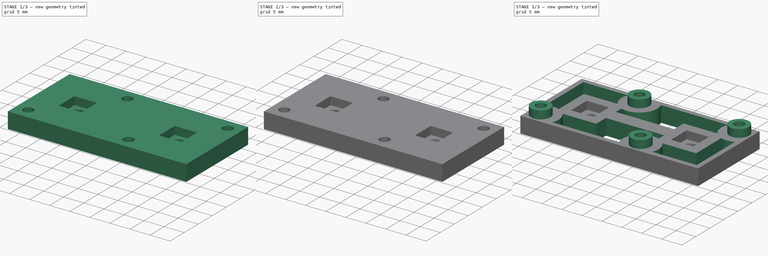
[diagram: build sequence overview — one tinted view per stage of 3, left to right]
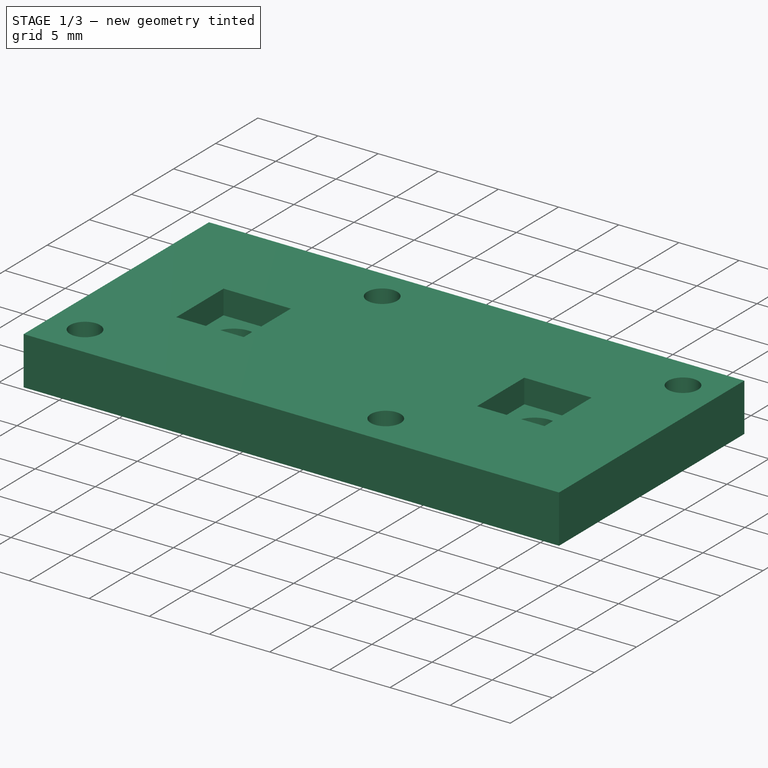
[diagram: stage 1 of 3 — iso view after this stage's code; geometry added in this stage tinted green]
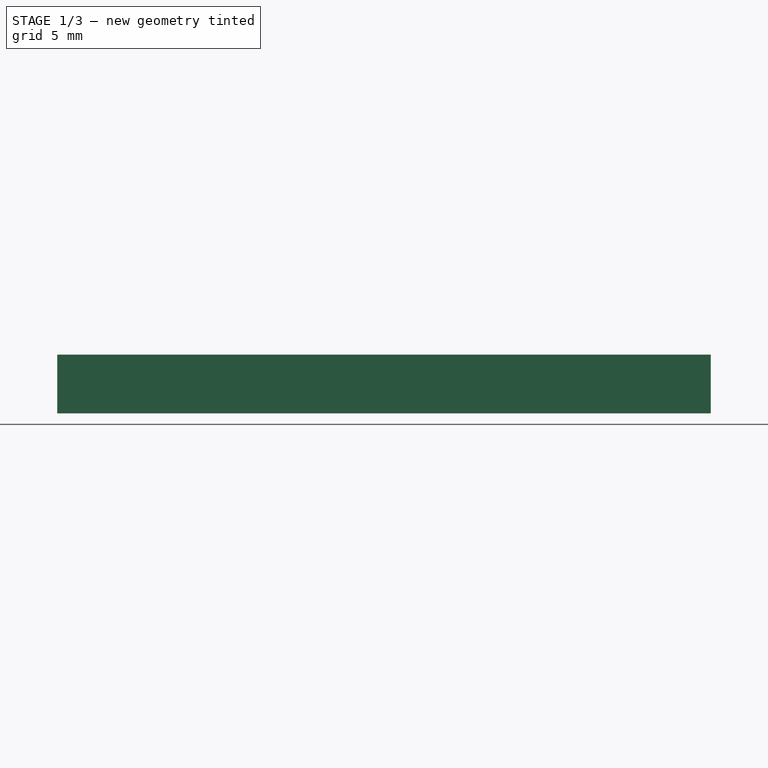
[diagram: stage 1 of 3 — front view after this stage's code; geometry added in this stage tinted green]
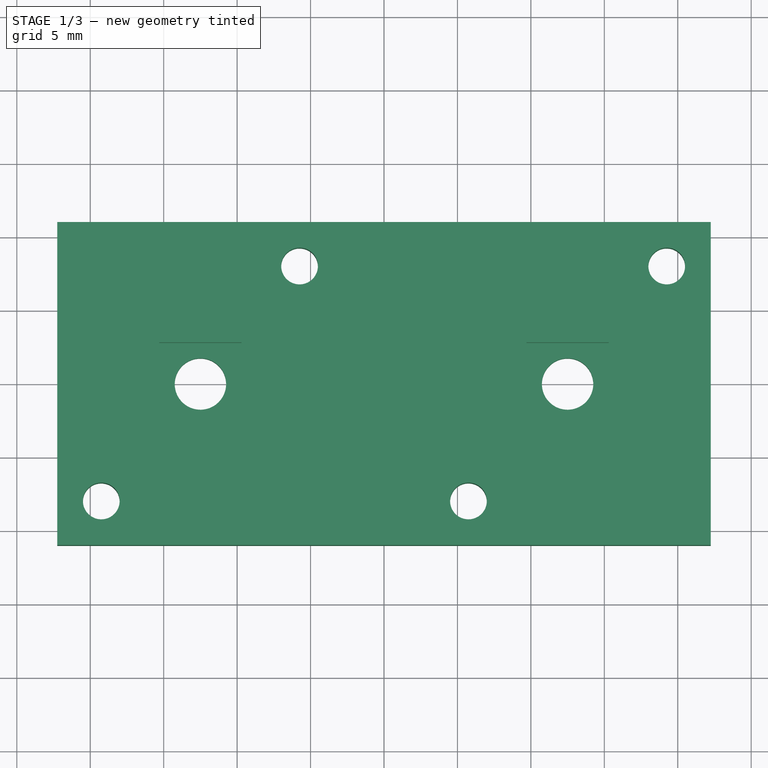
[diagram: stage 1 of 3 — top view after this stage's code; geometry added in this stage tinted green]
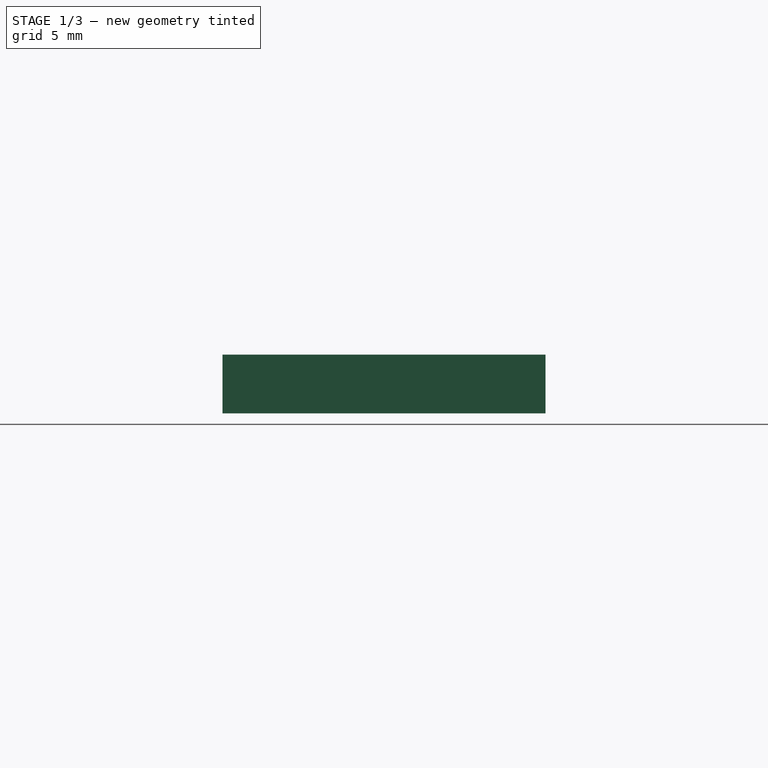
[diagram: stage 1 of 3 — right view after this stage's code; geometry added in this stage tinted green]
FCSTD DOCUMENT  (FreeCAD 0.19R24291 (Git))
Label: ri_step-down-holder
License: All rights reserved
LicenseURL: http://en.wikipedia.org/wiki/All_rights_reserved
objects: Sketcher::SketchObject×5, PartDesign::Pocket×3, PartDesign::Pad×2, PartDesign::Body×1, App::Part×1
note: 16 computed .brp shape members not serialized (recipe doc carries the construction recipe); baked Part::Feature solids carry a one-line shape summary decoded from their .brp

FEATURE [Sketcher::SketchObject] Sketch
  FullyConstrained = true
  MapMode = 5
  Support = -> [XY_Plane001]
  expr: Constraints[6] = .Constraints.Hor_Dim
  expr: Constraints[5] = .Constraints.Vert_Dim
  expr: Constraints[25] = .Constraints.Space_R
  sketch-geometry (10):
    g0: Circle CenterX=-12.5 CenterY=0 CenterZ=0 NormalX=0 NormalY=0 NormalZ=1 AngleXU=0 Radius=1.75
    g1: Circle CenterX=12.5 CenterY=0 CenterZ=0 NormalX=0 NormalY=0 NormalZ=1 AngleXU=0 Radius=1.75
    g2: Circle CenterX=-19.25 CenterY=-8 CenterZ=0 NormalX=0 NormalY=0 NormalZ=1 AngleXU=0 Radius=1.25
    g3: Circle CenterX=-5.75 CenterY=8 CenterZ=0 NormalX=0 NormalY=0 NormalZ=1 AngleXU=0 Radius=1.25
    g4: Circle CenterX=19.25 CenterY=8 CenterZ=0 NormalX=0 NormalY=0 NormalZ=1 AngleXU=0 Radius=1.25
    g5: Circle CenterX=5.75 CenterY=-8 CenterZ=0 NormalX=0 NormalY=0 NormalZ=1 AngleXU=0 Radius=1.25
    g6: LineSegment StartX=-22.25 StartY=11 StartZ=0 EndX=22.25 EndY=11 EndZ=0
    g7: LineSegment StartX=22.25 StartY=11 StartZ=0 EndX=22.25 EndY=-11 EndZ=0
    g8: LineSegment StartX=22.25 StartY=-11 StartZ=0 EndX=-22.25 EndY=-11 EndZ=0
    g9: LineSegment StartX=-22.25 StartY=-11 StartZ=0 EndX=-22.25 EndY=11 EndZ=0
  constraints (26):
    c: PointOnObject(g0,g-1)
    c: Diameter(g0) = 3.5
    c: Equal(g0,g1)
    c: Symmetric(g0,g1,g-1)
    c: DistanceX(g0,g1) = 25
    c: DistanceY(g5,g4) = 16
    c: DistanceX(g5,g4) = 13.5
    c: DistanceX(g2,g3) = 13.5  'Hor_Dim'
    c: Symmetric(g2,g3,g0)
    c: Symmetric(g4,g5,g1)
    c: DistanceY(g2,g3) = 16  'Vert_Dim'
    c: Diameter(g3) = 2.5
    c: Equal(g3,g2)
    c: Equal(g3,g5)
    c: Equal(g3,g4)
    c: Coincident(g6,g7)
    c: Coincident(g7,g8)
    c: Coincident(g8,g9)
    c: Coincident(g9,g6)
    c: Horizontal(g6)
    c: Horizontal(g8)
    c: Vertical(g7)
    c: Vertical(g9)
    c: Symmetric(g8,g6,g-1)
    c: DistanceX(g8,g2) = 3  'Space_R'
    c: DistanceY(g8,g2) = 3
FEATURE [PartDesign::Pad] Pad
  Direction = (1,1,1)
  Length = 4
  Length2 = 100
  Profile = -> Sketch
  Refine = true
  Type = 0
FEATURE [Sketcher::SketchObject] Sketch001
  ExternalGeometry = -> [Pad]
  FullyConstrained = true
  MapMode = 5
  Placement = pos=(0,0,4) rot=(0,0,1;0rad)
  Support = -> [Pad]
  sketch-geometry (8):
    g0: LineSegment StartX=-15.3 StartY=2.8 StartZ=0 EndX=-9.7 EndY=2.8 EndZ=0
    g1: LineSegment StartX=-9.7 StartY=2.8 StartZ=0 EndX=-9.7 EndY=-2.8 EndZ=0
    g2: LineSegment StartX=-9.7 StartY=-2.8 StartZ=0 EndX=-15.3 EndY=-2.8 EndZ=0
    g3: LineSegment StartX=-15.3 StartY=-2.8 StartZ=0 EndX=-15.3 EndY=2.8 EndZ=0
    g4: LineSegment StartX=9.7 StartY=2.8 StartZ=0 EndX=15.3 EndY=2.8 EndZ=0
    g5: LineSegment StartX=15.3 StartY=2.8 StartZ=0 EndX=15.3 EndY=-2.8 EndZ=0
    g6: LineSegment StartX=15.3 StartY=-2.8 StartZ=0 EndX=9.7 EndY=-2.8 EndZ=0
    g7: LineSegment StartX=9.7 StartY=-2.8 StartZ=0 EndX=9.7 EndY=2.8 EndZ=0
  constraints (22):
    c: Coincident(g0,g1)
    c: Coincident(g1,g2)
    c: Coincident(g2,g3)
    c: Coincident(g3,g0)
    c: Horizontal(g0)
    c: Horizontal(g2)
    c: Vertical(g1)
    c: Vertical(g3)
    c: Equal(g0,g3)
    c: Coincident(g4,g5)
    c: Coincident(g5,g6)
    c: Coincident(g6,g7)
    c: Coincident(g7,g4)
    c: Horizontal(g4)
    c: Horizontal(g6)
    c: Vertical(g5)
    c: Vertical(g7)
    c: Equal(g4,g7)
    c: DistanceY(g5,g5) = 5.6
    c: Equal(g3,g5)
    c: Symmetric(g2,g0,g-3)
    c: Symmetric(g6,g4,g-4)
FEATURE [PartDesign::Pocket] Pocket
  BaseFeature = -> Pad
  Length = 2
  Length2 = 100
  Profile = -> Sketch001
  Refine = true
  Type = 0
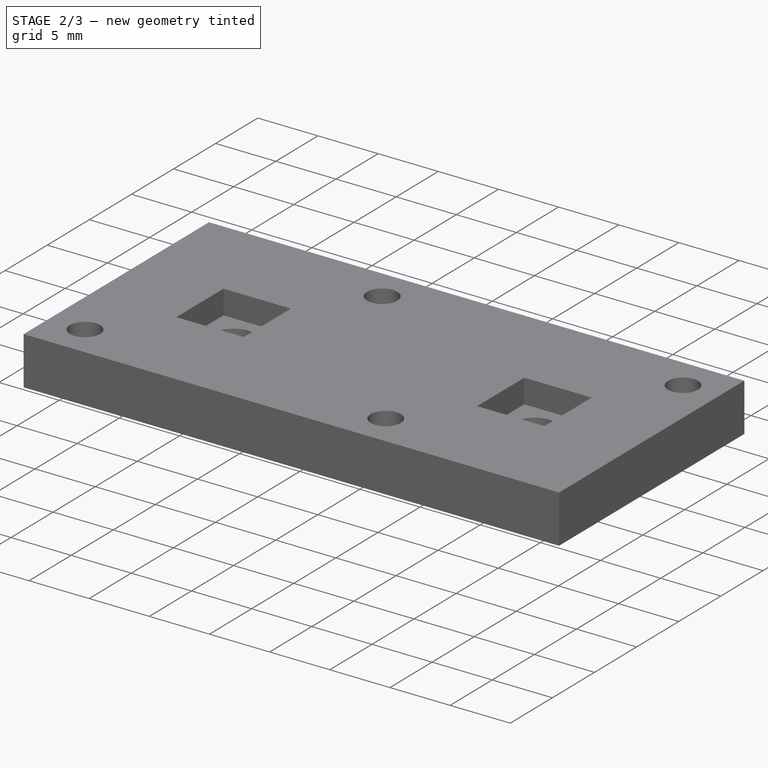
[diagram: stage 2 of 3 — iso view after this stage's code; geometry added in this stage tinted green]
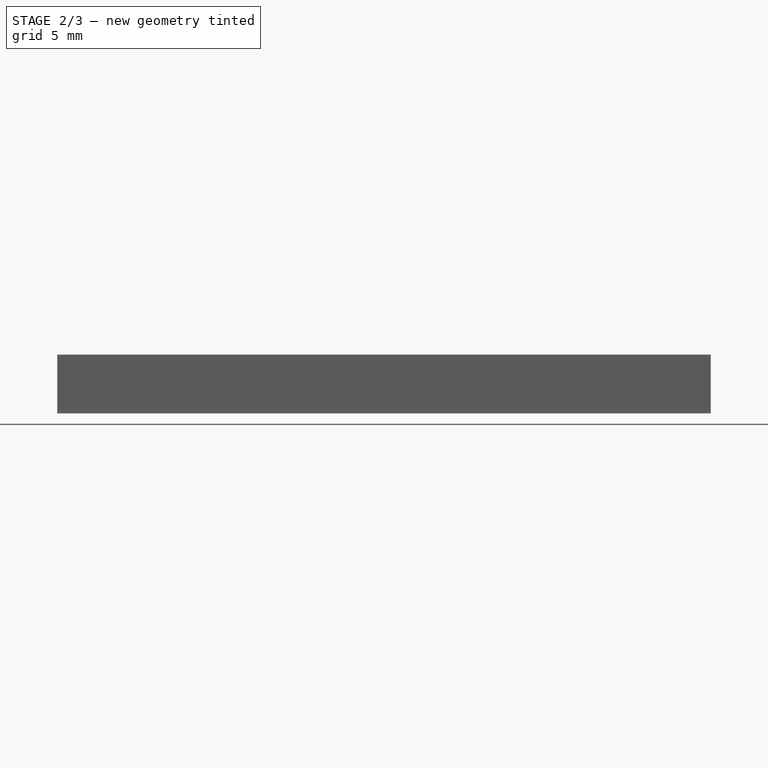
[diagram: stage 2 of 3 — front view after this stage's code; geometry added in this stage tinted green]
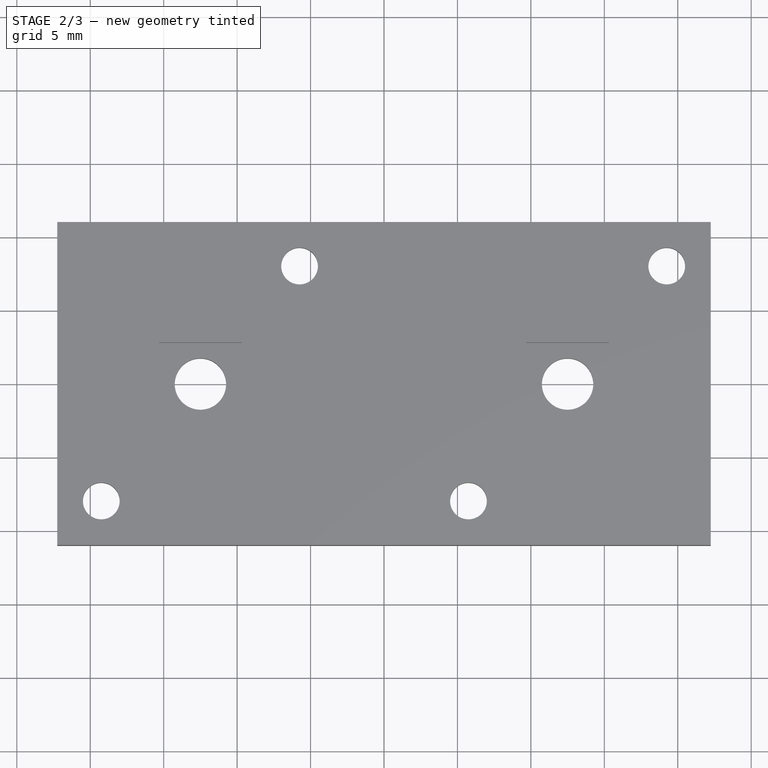
[diagram: stage 2 of 3 — top view after this stage's code; geometry added in this stage tinted green]
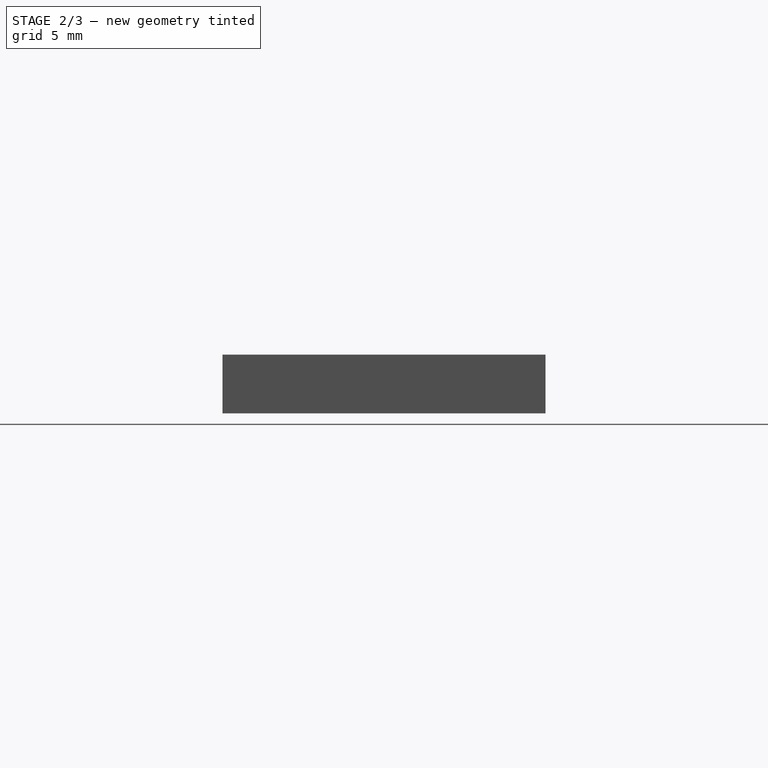
[diagram: stage 2 of 3 — right view after this stage's code; geometry added in this stage tinted green]
FEATURE [Sketcher::SketchObject] Sketch002
  ExternalGeometry = -> [Pocket]
  FullyConstrained = true
  MapMode = 5
  Placement = pos=(0,0,0) rot=(1,0,0;3.14159rad)
  sketch-geometry (28):
    g0: LineSegment StartX=-3.7 StartY=-6.81643 StartZ=0 EndX=-5.75 EndY=-5.63286 EndZ=0
    g1: LineSegment StartX=-5.75 StartY=-5.63286 StartZ=0 EndX=-7.8 EndY=-6.81643 EndZ=0
    g2: LineSegment StartX=-7.8 StartY=-6.81643 StartZ=0 EndX=-7.8 EndY=-9.18357 EndZ=0
    g3: LineSegment StartX=-7.8 StartY=-9.18357 StartZ=0 EndX=-5.75 EndY=-10.3671 EndZ=0
    g4: LineSegment StartX=-5.75 StartY=-10.3671 StartZ=0 EndX=-3.7 EndY=-9.18357 EndZ=0
    g5: LineSegment StartX=-3.7 StartY=-9.18357 StartZ=0 EndX=-3.7 EndY=-6.81643 EndZ=0
    g6: Circle CenterX=-5.75 CenterY=-8 CenterZ=0 NormalX=0 NormalY=0 NormalZ=1 AngleXU=0 Radius=2.36714
    g7: LineSegment StartX=7.8 StartY=9.18357 StartZ=0 EndX=5.75 EndY=10.3671 EndZ=0
    g8: LineSegment StartX=5.75 StartY=10.3671 StartZ=0 EndX=3.7 EndY=9.18357 EndZ=0
    g9: LineSegment StartX=3.7 StartY=9.18357 StartZ=0 EndX=3.7 EndY=6.81643 EndZ=0
    g10: LineSegment StartX=3.7 StartY=6.81643 StartZ=0 EndX=5.75 EndY=5.63286 EndZ=0
    g11: LineSegment StartX=5.75 StartY=5.63286 StartZ=0 EndX=7.8 EndY=6.81643 EndZ=0
    g12: LineSegment StartX=7.8 StartY=6.81643 StartZ=0 EndX=7.8 EndY=9.18357 EndZ=0
    g13: Circle CenterX=5.75 CenterY=8 CenterZ=0 NormalX=0 NormalY=0 NormalZ=1 AngleXU=0 Radius=2.36714
    g14: LineSegment StartX=21.3 StartY=-6.81643 StartZ=0 EndX=19.25 EndY=-5.63286 EndZ=0
    g15: LineSegment StartX=19.25 StartY=-5.63286 StartZ=0 EndX=17.2 EndY=-6.81643 EndZ=0
    g16: LineSegment StartX=17.2 StartY=-6.81643 StartZ=0 EndX=17.2 EndY=-9.18357 EndZ=0
    g17: LineSegment StartX=17.2 StartY=-9.18357 StartZ=0 EndX=19.25 EndY=-10.3671 EndZ=0
    g18: LineSegment StartX=19.25 StartY=-10.3671 StartZ=0 EndX=21.3 EndY=-9.18357 EndZ=0
    g19: LineSegment StartX=21.3 StartY=-9.18357 StartZ=0 EndX=21.3 EndY=-6.81643 EndZ=0
    g20: Circle CenterX=19.25 CenterY=-8 CenterZ=0 NormalX=0 NormalY=0 NormalZ=1 AngleXU=0 Radius=2.36714
    g21: LineSegment StartX=-17.2 StartY=9.18357 StartZ=0 EndX=-19.25 EndY=10.3671 EndZ=0
    g22: LineSegment StartX=-19.25 StartY=10.3671 StartZ=0 EndX=-21.3 EndY=9.18357 EndZ=0
    g23: LineSegment StartX=-21.3 StartY=9.18357 StartZ=0 EndX=-21.3 EndY=6.81643 EndZ=0
    g24: LineSegment StartX=-21.3 StartY=6.81643 StartZ=0 EndX=-19.25 EndY=5.63286 EndZ=0
    g25: LineSegment StartX=-19.25 StartY=5.63286 StartZ=0 EndX=-17.2 EndY=6.81643 EndZ=0
    g26: LineSegment StartX=-17.2 StartY=6.81643 StartZ=0 EndX=-17.2 EndY=9.18357 EndZ=0
    g27: Circle CenterX=-19.25 CenterY=8 CenterZ=0 NormalX=0 NormalY=0 NormalZ=1 AngleXU=0 Radius=2.36714
  constraints (64):
    c: Coincident(g0,g1)
    c: Coincident(g1,g2)
    c: Coincident(g2,g3)
    c: Coincident(g3,g4)
    c: Coincident(g4,g5)
    c: Coincident(g5,g0)
    c: Equal(g0, g1-g5) x5
    c: PointOnObject(g0,g6)
    c: PointOnObject(g1,g6)
    c: PointOnObject(g2,g6)
    c: PointOnObject(g3,g6)
    c: PointOnObject(g4,g6)
    c: PointOnObject(g5,g6)
    c: Coincident(g6,g-3)
    c: Coincident(g7,g8)
    c: Coincident(g8,g9)
    c: Coincident(g9,g10)
    c: Coincident(g10,g11)
    c: Coincident(g11,g12)
    c: Coincident(g12,g7)
    c: Equal(g7, g8-g12) x5
    c: PointOnObject(g7,g13)
    c: PointOnObject(g8,g13)
    c: PointOnObject(g9,g13)
    c: PointOnObject(g10,g13)
    c: PointOnObject(g11,g13)
    c: PointOnObject(g12,g13)
    c: Coincident(g13,g-4)
    c: Coincident(g14,g15)
    c: Coincident(g15,g16)
    c: Coincident(g16,g17)
    c: Coincident(g17,g18)
    c: Coincident(g18,g19)
    c: Coincident(g19,g14)
    c: Equal(g14, g15-g19) x5
    c: PointOnObject(g14,g20)
    c: PointOnObject(g15,g20)
    c: PointOnObject(g16,g20)
    c: PointOnObject(g17,g20)
    c: PointOnObject(g18,g20)
    c: PointOnObject(g19,g20)
    c: Coincident(g20,g-5)
    c: Coincident(g21,g22)
    c: Coincident(g22,g23)
    c: Coincident(g23,g24)
    c: Coincident(g24,g25)
    c: Coincident(g25,g26)
    c: Coincident(g26,g21)
    c: Equal(g21, g22-g26) x5
    c: PointOnObject(g21,g27)
    c: PointOnObject(g22,g27)
    c: PointOnObject(g23,g27)
    c: PointOnObject(g24,g27)
    c: PointOnObject(g25,g27)
    c: PointOnObject(g26,g27)
    c: Coincident(g27,g-6)
    c: Equal(g6,g13)
    c: Equal(g6,g20)
    c: Equal(g6,g27)
    c: Vertical(g0,g3)
    c: Vertical(g7,g10)
    c: Vertical(g14,g17)
    c: Vertical(g21,g24)
    c: DistanceX(g2,g4) = 4.1
FEATURE [PartDesign::Pocket] Pocket001
  BaseFeature = -> Pocket
  Length = 2
  Length2 = 100
  Profile = -> Sketch002
  Refine = true
  Type = 0
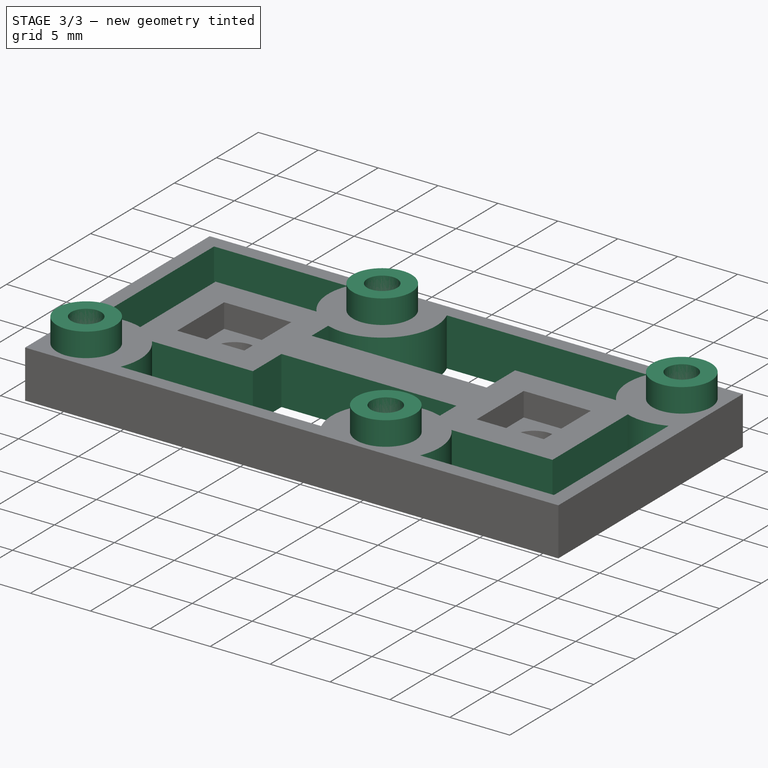
[diagram: stage 3 of 3 — iso view after this stage's code; geometry added in this stage tinted green]
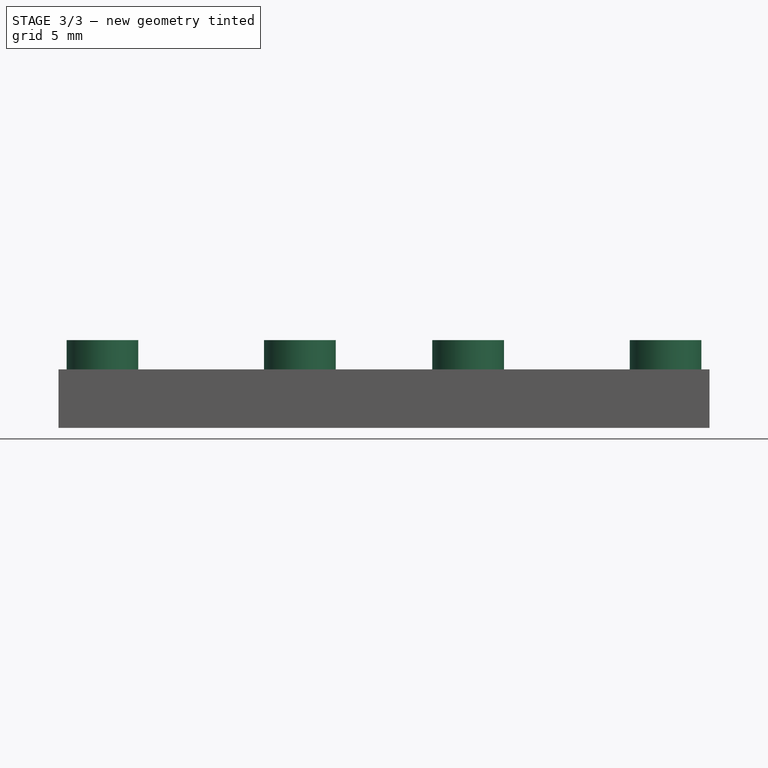
[diagram: stage 3 of 3 — front view after this stage's code; geometry added in this stage tinted green]
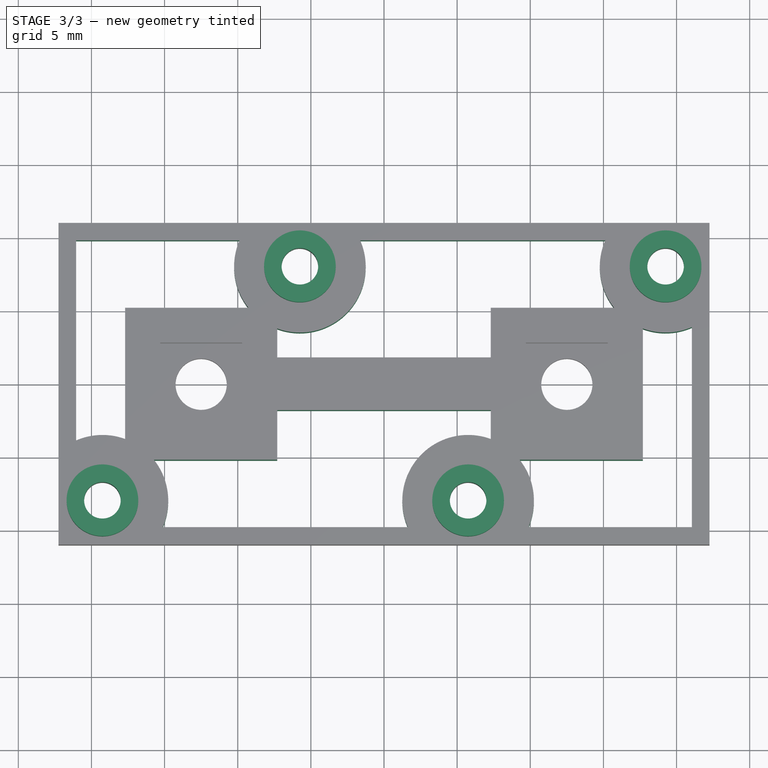
[diagram: stage 3 of 3 — top view after this stage's code; geometry added in this stage tinted green]
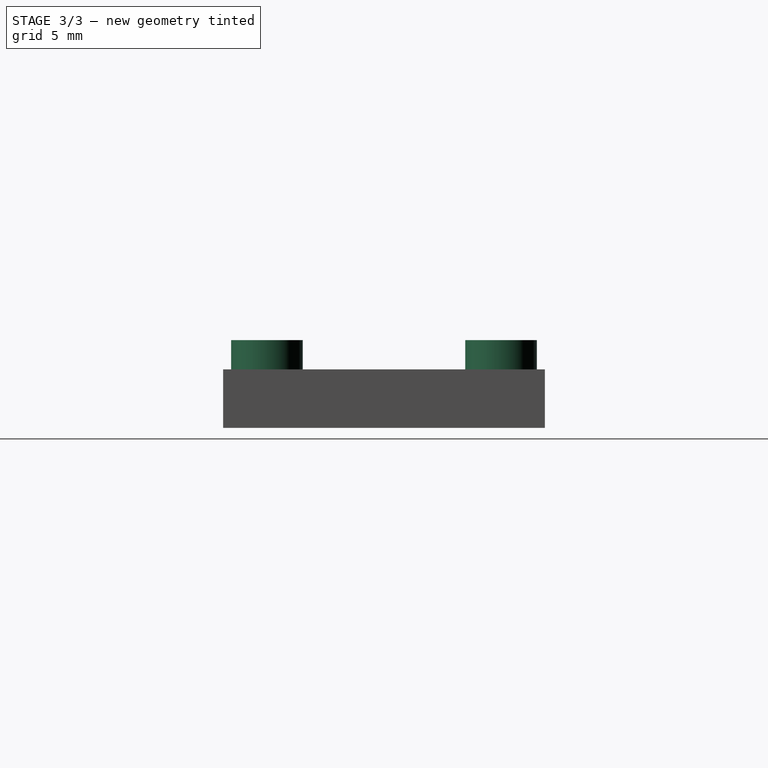
[diagram: stage 3 of 3 — right view after this stage's code; geometry added in this stage tinted green]
FEATURE [Sketcher::SketchObject] Sketch003
  ExternalGeometry = -> [Pocket001]
  FullyConstrained = true
  MapMode = 5
  Placement = pos=(0,0,4) rot=(0,0,1;0rad)
  Support = -> [Pocket001]
  sketch-geometry (10):
    g0: Circle CenterX=-5.75 CenterY=8 CenterZ=0 NormalX=0 NormalY=0 NormalZ=1 AngleXU=0 Radius=2.45
    g1: Circle CenterX=19.25 CenterY=8 CenterZ=0 NormalX=0 NormalY=0 NormalZ=1 AngleXU=0 Radius=2.45
    g2: Circle CenterX=5.75 CenterY=-8 CenterZ=0 NormalX=0 NormalY=0 NormalZ=1 AngleXU=0 Radius=2.45
    g3: Circle CenterX=-19.25 CenterY=-8 CenterZ=0 NormalX=0 NormalY=0 NormalZ=1 AngleXU=0 Radius=2.45
    g4: Circle CenterX=-5.75 CenterY=8 CenterZ=0 NormalX=0 NormalY=0 NormalZ=1 AngleXU=0 Radius=1.25
    g5: Circle CenterX=-19.25 CenterY=-8 CenterZ=0 NormalX=0 NormalY=0 NormalZ=1 AngleXU=0 Radius=1.25
    g6: Circle CenterX=5.75 CenterY=-8 CenterZ=0 NormalX=0 NormalY=0 NormalZ=1 AngleXU=0 Radius=1.25
    g7: Circle CenterX=19.25 CenterY=8 CenterZ=0 NormalX=0 NormalY=0 NormalZ=1 AngleXU=0 Radius=1.25
    g8: GeomPoint X=-4.5 Y=8 Z=0
    g9: GeomPoint X=-3.3 Y=8 Z=0
  constraints (20):
    c: Coincident(g0,g-3)
    c: Coincident(g1,g-6)
    c: Coincident(g2,g-5)
    c: Coincident(g3,g-4)
    c: Equal(g0,g3)
    c: Equal(g0,g2)
    c: Equal(g0,g1)
    c: Coincident(g4,g0)
    c: Equal(g-3,g4)
    c: Coincident(g5,g3)
    c: Equal(g5,g-4)
    c: Coincident(g6,g2)
    c: Equal(g-5,g6)
    c: Coincident(g7,g1)
    c: Equal(g7,g-6)
    c: PointOnObject(g8,g4)
    c: PointOnObject(g9,g0)
    c: Horizontal(g8,g9)
    c: Horizontal(g8,g0)
    c: DistanceX(g8,g9) = 1.2
FEATURE [PartDesign::Pad] Pad001
  BaseFeature = -> Pocket001
  Direction = (1,1,1)
  Length = 2
  Length2 = 100
  Profile = -> Sketch003
  Refine = true
  Type = 0
FEATURE [Sketcher::SketchObject] Sketch004
  ExternalGeometry = -> [Pad001]
  FullyConstrained = true
  MapMode = 5
  Placement = pos=(0,0,4) rot=(0,0,1;0rad)
  Support = -> [Pad001]
  expr: Constraints[74] = .Constraints.Wall * 3
  expr: Constraints[62] = .Constraints.Wall * 2
  expr: Constraints[60] = .Constraints.Wall * 2
  expr: Constraints[63] = .Constraints.Wall * 2
  expr: Constraints[58] = .Constraints.Wall * 2
  expr: Constraints[57] = .Constraints.Wall * 2
  expr: Constraints[56] = .Constraints.Wall * 2
  expr: Constraints[25] = .Constraints.Wall
  expr: Constraints[21] = .Constraints.Wall
  expr: Constraints[22] = .Constraints.Wall
  expr: Constraints[61] = .Constraints.Wall * 2
  expr: Constraints[23] = .Constraints.Wall
  expr: Constraints[59] = .Constraints.Wall * 2
  expr: Constraints[24] = .Constraints.Wall
  sketch-geometry (28):
    g0: LineSegment StartX=-21.05 StartY=9.8 StartZ=0 EndX=-21.05 EndY=-3.87568 EndZ=0
    g1: LineSegment StartX=-17.7 StartY=-3.77537 StartZ=0 EndX=-17.7 EndY=5.2 EndZ=0
    g2: LineSegment StartX=-17.7 StartY=5.2 StartZ=0 EndX=-9.27278 EndY=5.2 EndZ=0
    g3: LineSegment StartX=-9.87432 StartY=9.8 StartZ=0 EndX=-21.05 EndY=9.8 EndZ=0
    g4: LineSegment StartX=17.7 StartY=3.77537 StartZ=0 EndX=17.7 EndY=-5.2 EndZ=0
    g5: LineSegment StartX=17.7 StartY=-5.2 StartZ=0 EndX=9.27278 EndY=-5.2 EndZ=0
    g6: LineSegment StartX=9.87432 StartY=-9.8 StartZ=0 EndX=21.05 EndY=-9.8 EndZ=0
    g7: LineSegment StartX=21.05 StartY=-9.8 StartZ=0 EndX=21.05 EndY=3.87568 EndZ=0
    g8: LineSegment StartX=-7.3 StartY=3.77537 StartZ=0 EndX=-7.3 EndY=1.8 EndZ=0
    g9: LineSegment StartX=-7.3 StartY=-5.2 StartZ=0 EndX=-15.7272 EndY=-5.2 EndZ=0
    g10: LineSegment StartX=-15.1257 StartY=-9.8 StartZ=0 EndX=1.62568 EndY=-9.8 EndZ=0
    g11: LineSegment StartX=7.3 StartY=-3.77537 StartZ=0 EndX=7.3 EndY=-1.8 EndZ=0
    g12: LineSegment StartX=7.3 StartY=5.2 StartZ=0 EndX=15.7272 EndY=5.2 EndZ=0
    g13: LineSegment StartX=15.1257 StartY=9.8 StartZ=0 EndX=-1.62568 EndY=9.8 EndZ=0
    g14: ArcOfCircle CenterX=-5.75 CenterY=8 CenterZ=0 NormalX=0 NormalY=0 NormalZ=1 AngleXU=0 Radius=4.5 StartAngle=4.36074 EndAngle=6.6947
    g15: ArcOfCircle CenterX=-5.75 CenterY=8 CenterZ=0 NormalX=0 NormalY=0 NormalZ=1 AngleXU=0 Radius=4.5 StartAngle=2.73008 EndAngle=3.81317
    g16: ArcOfCircle CenterX=-19.25 CenterY=-8 CenterZ=0 NormalX=0 NormalY=0 NormalZ=1 AngleXU=0 Radius=4.5 StartAngle=1.21915 EndAngle=1.98231
    g17: ArcOfCircle CenterX=-19.25 CenterY=-8 CenterZ=0 NormalX=0 NormalY=0 NormalZ=1 AngleXU=0 Radius=4.5 StartAngle=5.87167 EndAngle=6.95476
    g18: ArcOfCircle CenterX=5.75 CenterY=-8 CenterZ=0 NormalX=0 NormalY=0 NormalZ=1 AngleXU=0 Radius=4.5 StartAngle=1.21915 EndAngle=3.55311
    g19: ArcOfCircle CenterX=5.75 CenterY=-8 CenterZ=0 NormalX=0 NormalY=0 NormalZ=1 AngleXU=0 Radius=4.5 StartAngle=5.87167 EndAngle=6.95476
    g20: ArcOfCircle CenterX=19.25 CenterY=8 CenterZ=0 NormalX=0 NormalY=0 NormalZ=1 AngleXU=0 Radius=4.5 StartAngle=2.73008 EndAngle=3.81317
    g21: ArcOfCircle CenterX=19.25 CenterY=8 CenterZ=0 NormalX=0 NormalY=0 NormalZ=1 AngleXU=0 Radius=4.5 StartAngle=4.36074 EndAngle=5.12391
    g22: LineSegment StartX=-7.3 StartY=1.8 StartZ=0 EndX=7.3 EndY=1.8 EndZ=0
    g23: LineSegment StartX=-7.3 StartY=-1.8 StartZ=0 EndX=7.3 EndY=-1.8 EndZ=0
    g24: LineSegment StartX=7.3 StartY=1.8 StartZ=0 EndX=7.3 EndY=5.2 EndZ=0
    g25: LineSegment StartX=-7.3 StartY=-1.8 StartZ=0 EndX=-7.3 EndY=-5.2 EndZ=0
    g26: GeomPoint X=-7.3 Y=0 Z=0
    g27: GeomPoint X=7.3 Y=0 Z=0
  constraints (79):
    c: Vertical(g0)
    c: Vertical(g1)
    c: Coincident(g1,g2)
    c: Horizontal(g2)
    c: Coincident(g3,g0)
    c: Horizontal(g3)
    c: Vertical(g4)
    c: Coincident(g4,g5)
    c: Horizontal(g5)
    c: Horizontal(g6)
    c: Coincident(g6,g7)
    c: Vertical(g7)
    c: Vertical(g8)
    c: Coincident(g25,g9)
    c: Horizontal(g9)
    c: Horizontal(g10)
    c: Vertical(g11)
    c: Coincident(g24,g12)
    c: Horizontal(g12)
    c: Horizontal(g13)
    c: DistanceY(g0,g-16) = 1.2  'Wall'
    c: DistanceY(g13,g-18) = 1.2
    c: DistanceY(g-18,g6) = 1.2
    c: DistanceY(g-17,g10) = 1.2
    c: DistanceX(g6,g-18) = 1.2
    c: DistanceX(g-16,g0) = 1.2
    c: Coincident(g14,g-11)
    c: Coincident(g15,g14)
    c: Coincident(g15,g2)
    c: Coincident(g16,g-12)
    c: Coincident(g16,g0)
    c: Coincident(g17,g16)
    c: Coincident(g17,g9)
    c: Coincident(g18,g-13)
    c: Coincident(g18,g10)
    c: Coincident(g19,g18)
    c: Coincident(g19,g5)
    c: Equal(g15,g14)
    c: Equal(g16,g17)
    c: Equal(g18,g19)
    c: Equal(g18,g14)
    c: Coincident(g20,g-14)
    c: Coincident(g20,g12)
    c: Coincident(g21,g20)
    c: Equal(g21,g20)
    c: Equal(g20,g17)
    c: Coincident(g3,g15)
    c: Coincident(g13,g14)
    c: Coincident(g8,g14)
    c: Coincident(g17,g10)
    c: Coincident(g1,g16)
    c: Coincident(g21,g4)
    c: Coincident(g7,g21)
    c: Coincident(g20,g13)
    c: Coincident(g19,g6)
    c: Coincident(g11,g18)
    c: DistanceY(g-6,g2) = 2.4
    c: DistanceY(g9,g-5) = 2.4
    c: DistanceY(g5,g-10) = 2.4
    c: DistanceY(g-9,g12) = 2.4
    c: DistanceX(g11,g-10) = 2.4
    c: DistanceX(g-6,g8) = 2.4
    c: DistanceX(g1,g-5) = 2.4
    c: DistanceX(g-9,g4) = 2.4
    c: Radius(g18) = 4.5
    c: Equal(g17,g18)
    c: Horizontal(g22)
    c: Horizontal(g23)
    c: Tangent(g11,g24)
    c: Coincident(g22,g24)
    c: Coincident(g23,g11)
    c: Tangent(g8,g25)
    c: Coincident(g22,g8)
    c: Coincident(g23,g25)
    c: DistanceY(g11,g22) = 3.6
    c: PointOnObject(g26,g-1)
    c: PointOnObject(g27,g-1)
    c: Vertical(g27,g11)
    c: Symmetric(g23,g8,g26)
FEATURE [PartDesign::Pocket] Pocket002
  BaseFeature = -> Pad001
  Length = 5
  Length2 = 100
  Profile = -> Sketch004
  Refine = true
  Type = 1
FEATURE [PartDesign::Body] Body
  Group = -> [Sketch,Pad,Sketch001,Sketch002,Pocket,Pocket001,Sketch003,Pad001,Sketch004,Pocket002]
  Origin = -> Origin001
  Tip = -> Pocket002
FEATURE [App::Part] Part
  Group = -> [Body]
  Origin = -> Origin
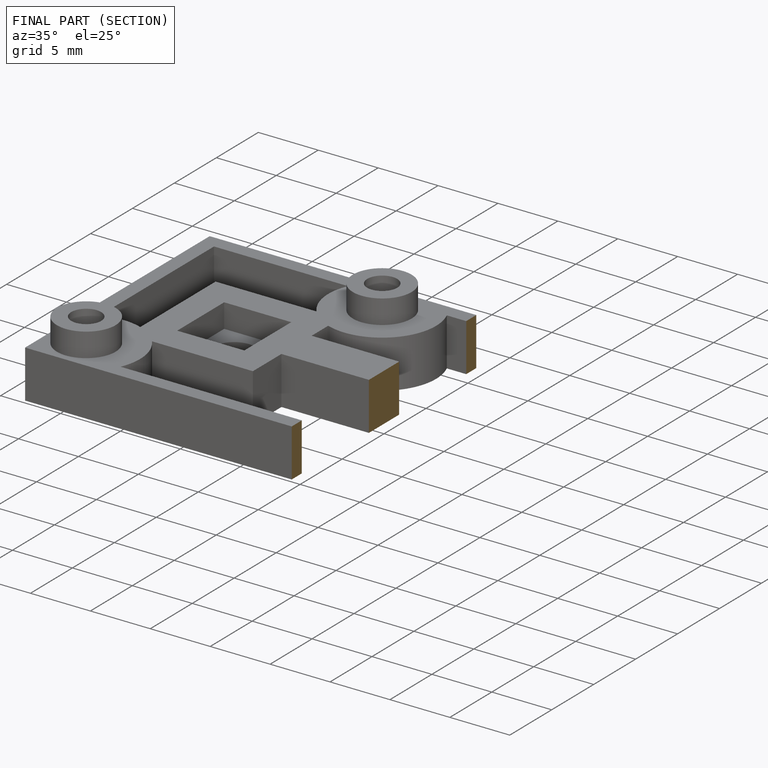
[diagram: finished part — half-section view (interior)]
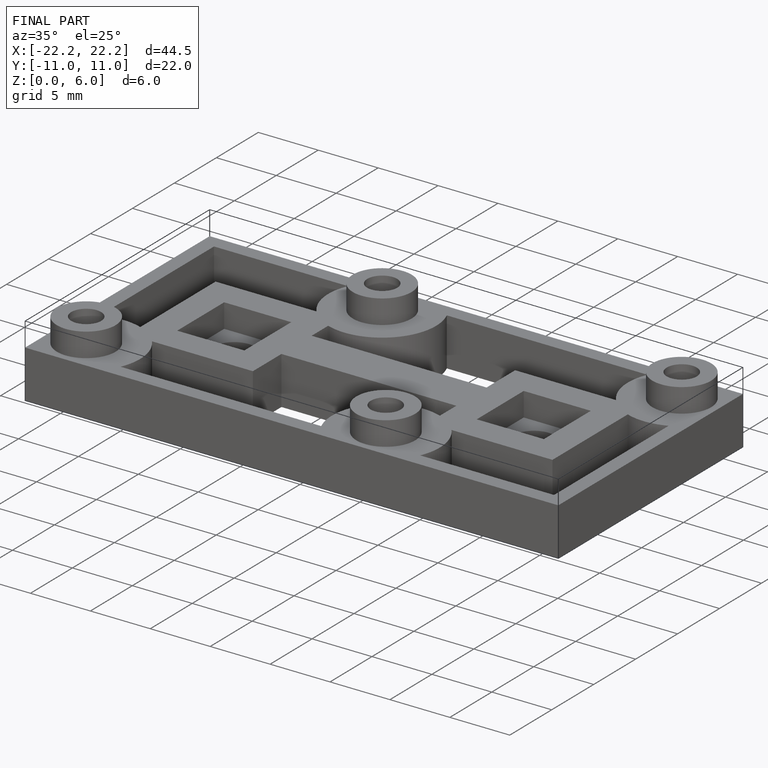
[diagram: finished part — iso view with bounding-box wireframe]
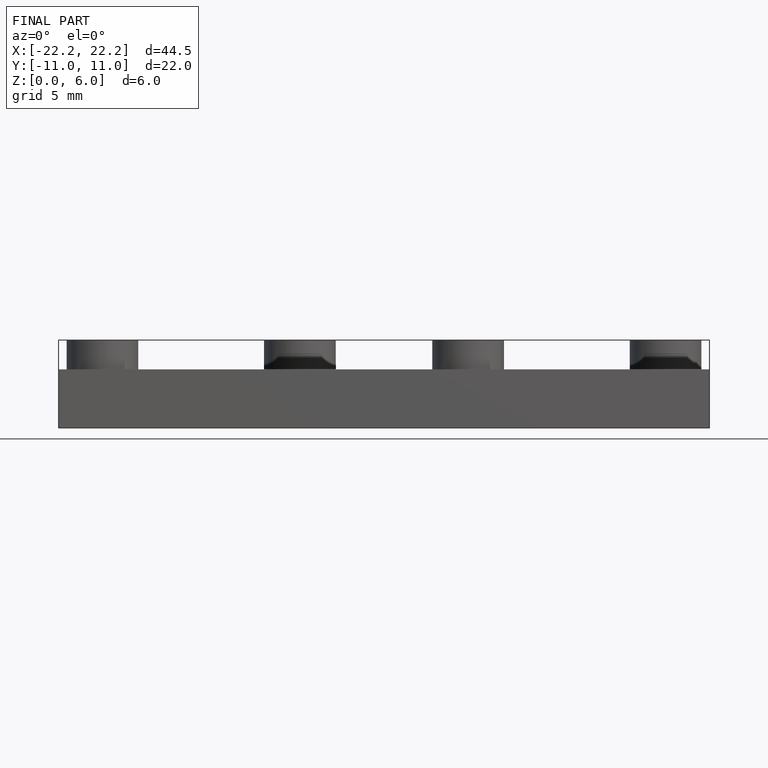
[diagram: finished part — front view with bounding-box wireframe]
